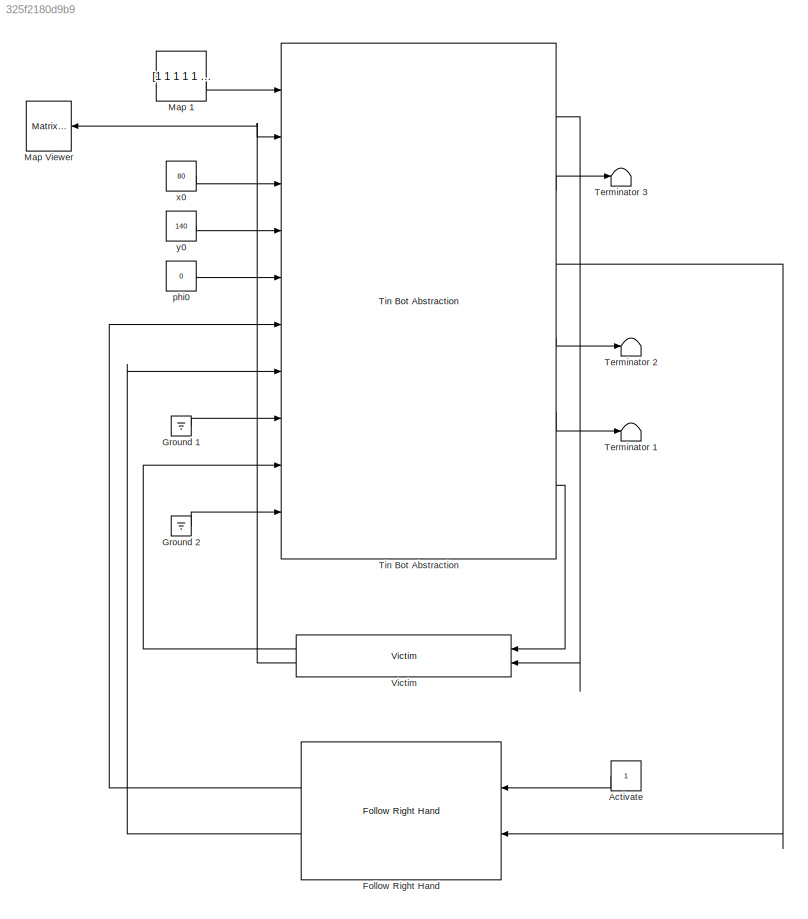
MODEL slx_325f2180d9b9
KIND model
CONFIG AbsTol = auto
CONFIG FixedStep = 0.01
CONFIG MaxStep = 0.001
CONFIG MinStep = auto
CONFIG RelTol = 1e-3
CONFIG SampleTimeConstraint = Unconstrained
CONFIG Solver = FixedStepAuto
CONFIG SolverMode = Auto
CONFIG SolverName = FixedStepAuto
CONFIG StartTime = 0.0
CONFIG StopTime = inf
BLOCK [Constant] Activate
BLOCK [Reference] Follow Right Hand  REF=tinbot/Follow Right Hand  (lib defined in slx_3c5c153e9850, slx_5b2796442827, +1 more)
  Ports = [2, 2]
  SourceBlock = tinbot/Follow Right Hand
BLOCK [Ground] Ground 1
BLOCK [Ground] Ground 2
BLOCK [Constant] Map 1
  Value = [1 1 1 1 1 1 1 1 1 1 1 1 1 1 1 1 1 1 1 1 1 1 1 1 1 1 1 1 1 1 1 1 1 1 1 1 1 1 1 1 1 1 1 1 1 1 1 1 1 1 1 1 1 1 1 1 1 1 1 1 1 1 1 1 1 1 1 1 1 1 1 1 1 1 1 1 1 1 1 1 1 1 1 1 1 1 1 1 1 1 1 1 1 1 1 1 1 1 1 1 1 1 1 1 1 1 1 1 1 1 1 1 1 1 1 1 1 1 1 1 1 1 1 1 1 1 1 1 1 1 1 1 1 1 1 1 1 1 1 1 1 1 1 1 1 1 1 1 1 1 1 1 1 1 1 1 1 1 1 1 1 1 1 1 1 1 1 1 1 1 1 1 1 1 1 1 1 1 1 1 1 1 1 1 1 1 1 1 1 1 1 1 1 1 1 1 1 1 1 1...<+79601ch>
BLOCK [Reference] Map Viewer  REF=dspsnks4/Matrix
Viewer
  Ports = [1]
  SourceBlock = dspsnks4/Matrix\nViewer
  SourceType = Matrix Viewer
BLOCK [Terminator] Terminator 1
BLOCK [Terminator] Terminator 2
BLOCK [Terminator] Terminator 3
BLOCK [Reference] Tin Bot Abstraction  REF=tinbot/Tin Bot Abstraction  (lib defined in slx_3c5c153e9850, slx_5b2796442827, +1 more)
  Ports = [10, 6]
  SourceBlock = tinbot/Tin Bot Abstraction
BLOCK [Reference] Victim  REF=tinbot/Victim  (lib defined in slx_3c5c153e9850, slx_5b2796442827, +1 more)
  Ports = [2, 2]
  SourceBlock = tinbot/Victim
BLOCK [Constant] phi0
  Value = 0
BLOCK [Constant] x0
  Value = 80
BLOCK [Constant] y0
  Value = 140
LINE Activate:1 -> Follow Right Hand:1
LINE Follow Right Hand:1 -> Tin Bot Abstraction:6
LINE Follow Right Hand:2 -> Tin Bot Abstraction:7
LINE Ground 1:1 -> Tin Bot Abstraction:8
LINE Ground 2:1 -> Tin Bot Abstraction:10
LINE Map 1:1 -> Tin Bot Abstraction:1
LINE Tin Bot Abstraction:1 -> Victim:2
LINE Tin Bot Abstraction:2 -> Terminator 3:1
LINE Tin Bot Abstraction:3 -> Follow Right Hand:2
LINE Tin Bot Abstraction:4 -> Terminator 2:1
LINE Tin Bot Abstraction:5 -> Terminator 1:1
LINE Tin Bot Abstraction:6 -> Victim:1
LINE Victim:1 -> Tin Bot Abstraction:9
NET Victim:2 -> Map Viewer:1, Tin Bot Abstraction:2
LINE phi0:1 -> Tin Bot Abstraction:5
LINE x0:1 -> Tin Bot Abstraction:3
LINE y0:1 -> Tin Bot Abstraction:4
note: NET lines group one-source signal fan-out (src -> all destinations, sorted); 1:1 wires keep LINE
